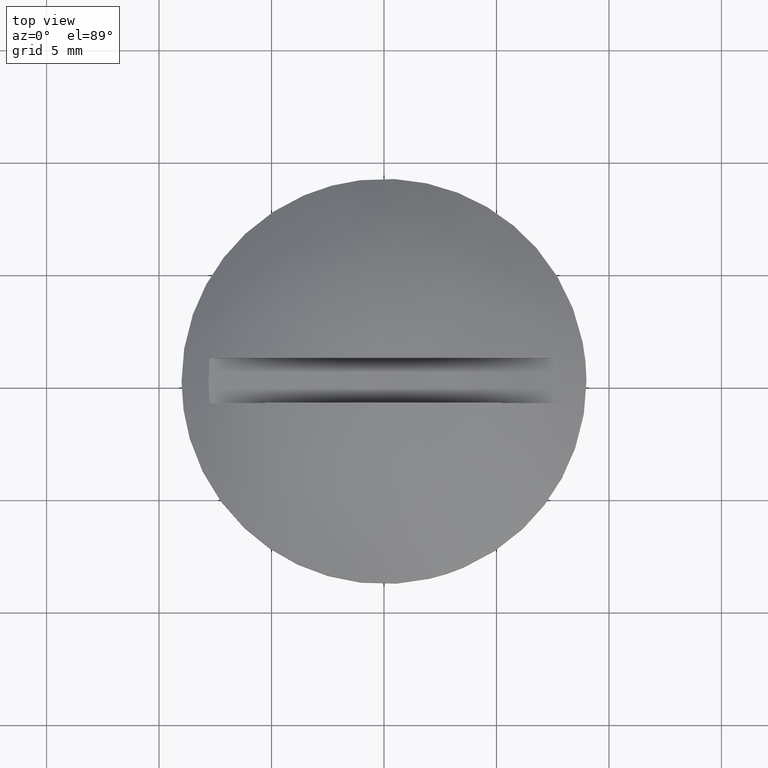
[diagram: clean part render]
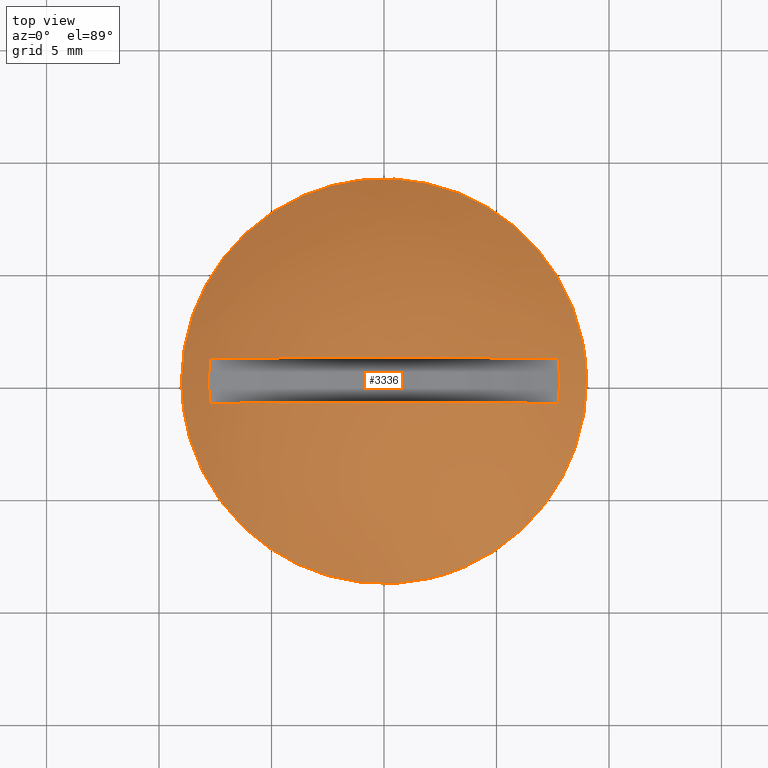
[diagram: same view with one face highlighted and labeled with its STEP entity id]
A machine part, top view. The second image highlights one B-rep face of the part: STEP entity #3336.
In plain terms, the highlighted face is a freeform B-spline surface patch.
Its self-contained STEP definition (entity closure, byte-faithful):
#316=CARTESIAN_POINT('',(-1.062301689583547,8.937086500659266,0.800003000000103));
#317=VERTEX_POINT('',#316);
#323=CARTESIAN_POINT('',(9.0,0.0,0.800003000000103));
#324=VERTEX_POINT('',#323);
#325=CARTESIAN_POINT('',(-1.062301689583547,8.937086500659266,0.800003000000103));
#326=CARTESIAN_POINT('',(-0.533013831755885,9.000000000000002,0.800003000000103));
#327=CARTESIAN_POINT('',(0.0,9.0,0.800003000000103));
#328=CARTESIAN_POINT('',(9.0,9.0,0.800003000000103));
#329=CARTESIAN_POINT('',(9.0,0.0,0.800003000000103));
#337=(BOUNDED_CURVE()B_SPLINE_CURVE(2,(#325,#326,#327,#328,#329),.UNSPECIFIED.,.F.,.U.)B_SPLINE_CURVE_WITH_KNOTS((3,2,3),(0.229562594963984,0.250000000000000,0.500000000000000),.UNSPECIFIED.)CURVE()GEOMETRIC_REPRESENTATION_ITEM()RATIONAL_B_SPLINE_CURVE((0.956026992231740,0.976056090619228,1.0,0.707106781186547,1.0))REPRESENTATION_ITEM(''));
#338=EDGE_CURVE('',#317,#324,#337,.T.);
#340=CARTESIAN_POINT('',(0.549431581206479,-8.983213508402491,0.800003000000103));
#341=VERTEX_POINT('',#340);
#342=CARTESIAN_POINT('',(9.0,0.0,0.800003000000103));
#343=CARTESIAN_POINT('',(9.000000000000002,-8.466359582569112,0.800003000000103));
#344=CARTESIAN_POINT('',(0.549431581206479,-8.983213508402491,0.800003000000103));
#352=(BOUNDED_CURVE()B_SPLINE_CURVE(2,(#342,#343,#344),.UNSPECIFIED.,.F.,.U.)B_SPLINE_CURVE_WITH_KNOTS((3,3),(0.500000000000000,0.739333063555006),.UNSPECIFIED.)CURVE()GEOMETRIC_REPRESENTATION_ITEM()RATIONAL_B_SPLINE_CURVE((1.0,0.719603874587559,0.976072258806423))REPRESENTATION_ITEM(''));
#353=EDGE_CURVE('',#324,#341,#352,.T.);
#427=CARTESIAN_POINT('',(-9.0,0.0,0.800003000000103));
#428=VERTEX_POINT('',#427);
#429=CARTESIAN_POINT('',(0.549431581206479,-8.983213508402491,0.800003000000103));
#430=CARTESIAN_POINT('',(0.274972224989059,-9.000000000000002,0.800003000000103));
#431=CARTESIAN_POINT('',(0.0,-9.0,0.800003000000103));
#432=CARTESIAN_POINT('',(-9.0,-9.0,0.800003000000103));
#433=CARTESIAN_POINT('',(-9.0,0.0,0.800003000000103));
#441=(BOUNDED_CURVE()B_SPLINE_CURVE(2,(#429,#430,#431,#432,#433),.UNSPECIFIED.,.F.,.U.)B_SPLINE_CURVE_WITH_KNOTS((3,2,3),(0.739333063555006,0.750000000000000,1.0),.UNSPECIFIED.)CURVE()GEOMETRIC_REPRESENTATION_ITEM()RATIONAL_B_SPLINE_CURVE((0.976072258806423,0.987502906598989,1.0,0.707106781186547,1.0))REPRESENTATION_ITEM(''));
#442=EDGE_CURVE('',#341,#428,#441,.T.);
#444=CARTESIAN_POINT('',(-9.0,0.0,0.800003000000103));
#445=CARTESIAN_POINT('',(-9.000000000000002,7.993576518304625,0.800003000000103));
#446=CARTESIAN_POINT('',(-1.062301689583547,8.937086500659266,0.800003000000103));
#454=(BOUNDED_CURVE()B_SPLINE_CURVE(2,(#444,#445,#446),.UNSPECIFIED.,.F.,.U.)B_SPLINE_CURVE_WITH_KNOTS((3,3),(0.0,0.229562594963984),.UNSPECIFIED.)CURVE()GEOMETRIC_REPRESENTATION_ITEM()RATIONAL_B_SPLINE_CURVE((1.0,0.731050690567319,0.956026992231740))REPRESENTATION_ITEM(''));
#455=EDGE_CURVE('',#428,#317,#454,.T.);
#3177=CARTESIAN_POINT('',(-7.756297594288951,-0.999999999999909,1.600005047999795));
#3178=VERTEX_POINT('',#3177);
#3179=CARTESIAN_POINT('',(7.756297594288951,-0.999999999999909,1.600005047999795));
#3180=VERTEX_POINT('',#3179);
#3194=CARTESIAN_POINT('',(7.756297594288951,-0.999999999999915,1.600005047999783));
#3195=CARTESIAN_POINT('',(3.469447E-015,-0.999999999999915,6.300019137504304));
#3196=CARTESIAN_POINT('',(-7.756297594288944,-0.999999999999915,1.600005047999785));
#3204=(BOUNDED_CURVE()B_SPLINE_CURVE(2,(#3194,#3195,#3196),.UNSPECIFIED.,.F.,.U.)CURVE()GEOMETRIC_REPRESENTATION_ITEM()QUASI_UNIFORM_CURVE()RATIONAL_B_SPLINE_CURVE((1.0,0.855235576435009,1.0))REPRESENTATION_ITEM(''));
#3205=EDGE_CURVE('',#3180,#3178,#3204,.T.);
#3215=CARTESIAN_POINT('',(7.756297594288951,1.0,1.600005047999795));
#3216=VERTEX_POINT('',#3215);
#3217=CARTESIAN_POINT('',(-7.756297594288951,1.0,1.600005047999795));
#3218=VERTEX_POINT('',#3217);
#3219=CARTESIAN_POINT('',(7.756297594288951,1.0,1.600005047999783));
#3220=CARTESIAN_POINT('',(3.469447E-015,1.0,6.300019137504304));
#3221=CARTESIAN_POINT('',(-7.756297594288944,1.0,1.600005047999785));
#3229=(BOUNDED_CURVE()B_SPLINE_CURVE(2,(#3219,#3220,#3221),.UNSPECIFIED.,.F.,.U.)CURVE()GEOMETRIC_REPRESENTATION_ITEM()QUASI_UNIFORM_CURVE()RATIONAL_B_SPLINE_CURVE((1.0,0.855235576435009,1.0))REPRESENTATION_ITEM(''));
#3230=EDGE_CURVE('',#3216,#3218,#3229,.T.);
#3263=CARTESIAN_POINT('',(-7.756297594288967,-0.999999999999909,1.600005047999784));
#3264=CARTESIAN_POINT('',(-7.788271615787219,-0.666666666666591,1.606671715733117));
#3265=CARTESIAN_POINT('',(-7.819938076451132,4.575333E-014,1.613338383466444));
#3266=CARTESIAN_POINT('',(-7.788271615787212,0.666666666666682,1.606671715733117));
#3267=CARTESIAN_POINT('',(-7.756297594288955,1.0,1.600005047999784));
#3268=B_SPLINE_CURVE_WITH_KNOTS('',3,(#3263,#3264,#3265,#3266,#3267),.UNSPECIFIED.,.F.,.U.,(4,1,4),(0.0,0.500000000000000,1.0),.UNSPECIFIED.);
#3269=EDGE_CURVE('',#3178,#3218,#3268,.T.);
#3272=CARTESIAN_POINT('',(7.756297594288955,1.0,1.600005047999784));
#3273=CARTESIAN_POINT('',(7.788271615787210,0.666666666666682,1.606671715733117));
#3274=CARTESIAN_POINT('',(7.819938076451114,4.586175E-014,1.613338383466455));
#3275=CARTESIAN_POINT('',(7.788271615787211,-0.666666666666591,1.606671715733122));
#3276=CARTESIAN_POINT('',(7.756297594288957,-0.999999999999909,1.600005047999789));
#3277=B_SPLINE_CURVE_WITH_KNOTS('',3,(#3272,#3273,#3274,#3275,#3276),.UNSPECIFIED.,.F.,.U.,(4,1,4),(0.0,0.500000000000000,1.0),.UNSPECIFIED.);
#3278=EDGE_CURVE('',#3216,#3180,#3277,.T.);
#3300=CARTESIAN_POINT('',(-8.668590871397656,-8.668399436222908,-2.556240766830940));
#3301=CARTESIAN_POINT('',(-4.847879113813923,-9.695544108724533,0.245377941945507));
#3302=CARTESIAN_POINT('',(4.847878561237812,-9.695544108724533,0.245377941945507));
#3303=CARTESIAN_POINT('',(8.668590092677633,-8.668399645570821,-2.556240195817853));
#3304=CARTESIAN_POINT('',(-9.695707485270390,-4.847746683743839,0.245239541190159));
#3305=CARTESIAN_POINT('',(-5.499502946345535,-5.499381496582469,3.800011000000088));
#3306=CARTESIAN_POINT('',(5.499502319495344,-5.499381496582469,3.800011000000088));
#3307=CARTESIAN_POINT('',(9.695706642026778,-4.847746814692373,0.245240255535240));
#3308=CARTESIAN_POINT('',(-9.695707485270390,4.847774014610871,0.245239541190172));
#3309=CARTESIAN_POINT('',(-5.499502946345535,5.499412501268606,3.800011000000100));
#3310=CARTESIAN_POINT('',(5.499502319495344,5.499412501268606,3.800011000000100));
#3311=CARTESIAN_POINT('',(9.695706642026778,4.847774145560142,0.245240255535253));
#3312=CARTESIAN_POINT('',(-8.668580516806671,8.668437952935129,-2.556269009176873));
#3313=CARTESIAN_POINT('',(-4.847872636880483,9.695585817090857,0.245342610024615));
#3314=CARTESIAN_POINT('',(4.847872084305110,9.695585817090857,0.245342610024615));
#3315=CARTESIAN_POINT('',(8.668579738087335,8.668438162283731,-2.556268438165153));
#3323=(BOUNDED_SURFACE()B_SPLINE_SURFACE(2,2,((#3300,#3304,#3308,#3312),(#3301,#3305,#3309,#3313),(#3302,#3306,#3310,#3314),(#3303,#3307,#3311,#3315)),.UNSPECIFIED.,.F.,.F.,.U.)B_SPLINE_SURFACE_WITH_KNOTS((3,1,3),(3,1,3),(1.152420298242569,11.305347194732120,21.458272933959961),(1.152644513154030,11.305347194732120,21.458107115721699),.UNSPECIFIED.)GEOMETRIC_REPRESENTATION_ITEM()RATIONAL_B_SPLINE_SURFACE(((1.268834353341407,1.134420145141614,1.134420145141614,1.268835868959879),(1.134414208199793,1.0,1.0,1.134415723818265),(1.134414208199793,1.0,1.0,1.134415723818265),(1.268834322698170,1.134420114498377,1.134420114498377,1.268835838316641)))REPRESENTATION_ITEM('')SURFACE());
#3324=ORIENTED_EDGE('',*,*,#442,.F.);
#3325=ORIENTED_EDGE('',*,*,#353,.F.);
#3326=ORIENTED_EDGE('',*,*,#338,.F.);
#3327=ORIENTED_EDGE('',*,*,#455,.F.);
#3328=EDGE_LOOP('',(#3324,#3325,#3326,#3327));
#3329=FACE_OUTER_BOUND('',#3328,.T.);
#3330=ORIENTED_EDGE('',*,*,#3230,.F.);
#3331=ORIENTED_EDGE('',*,*,#3278,.T.);
#3332=ORIENTED_EDGE('',*,*,#3205,.T.);
#3333=ORIENTED_EDGE('',*,*,#3269,.T.);
#3334=EDGE_LOOP('',(#3330,#3331,#3332,#3333));
#3335=FACE_BOUND('',#3334,.T.);
#3336=ADVANCED_FACE('',(#3329,#3335),#3323,.T.);